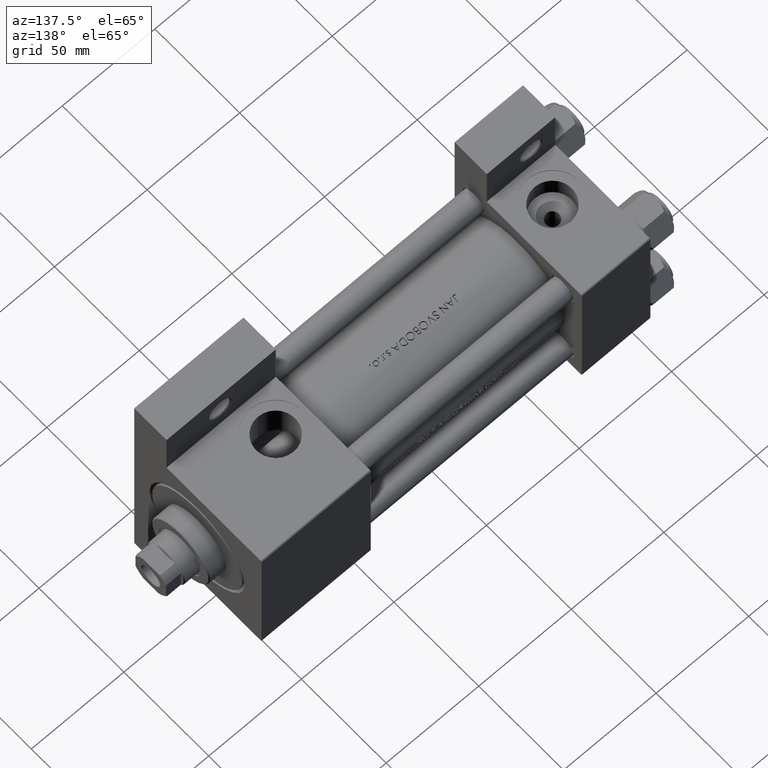
[diagram: clean part render]
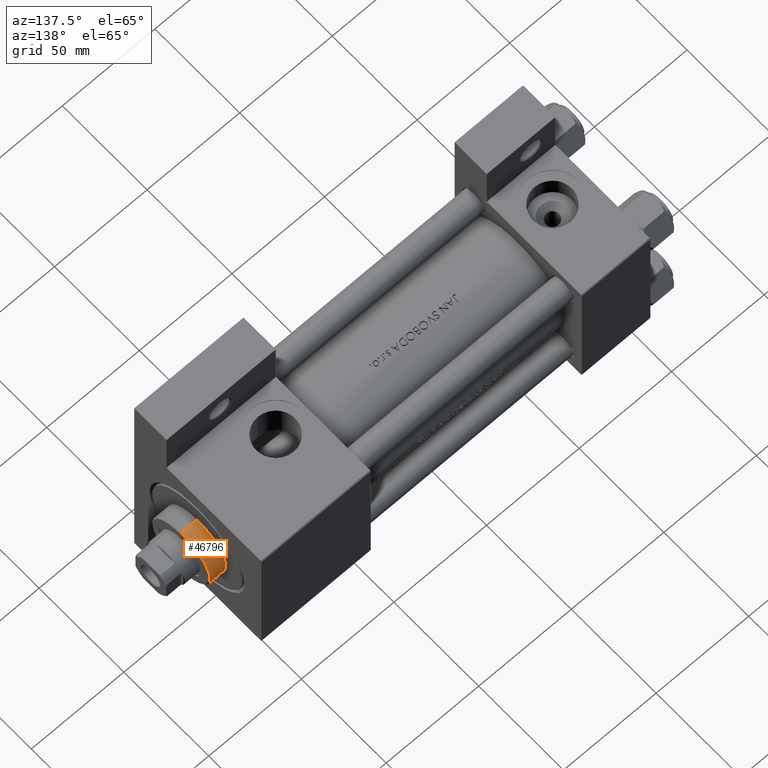
[diagram: same view with one face highlighted and labeled with its STEP entity id]
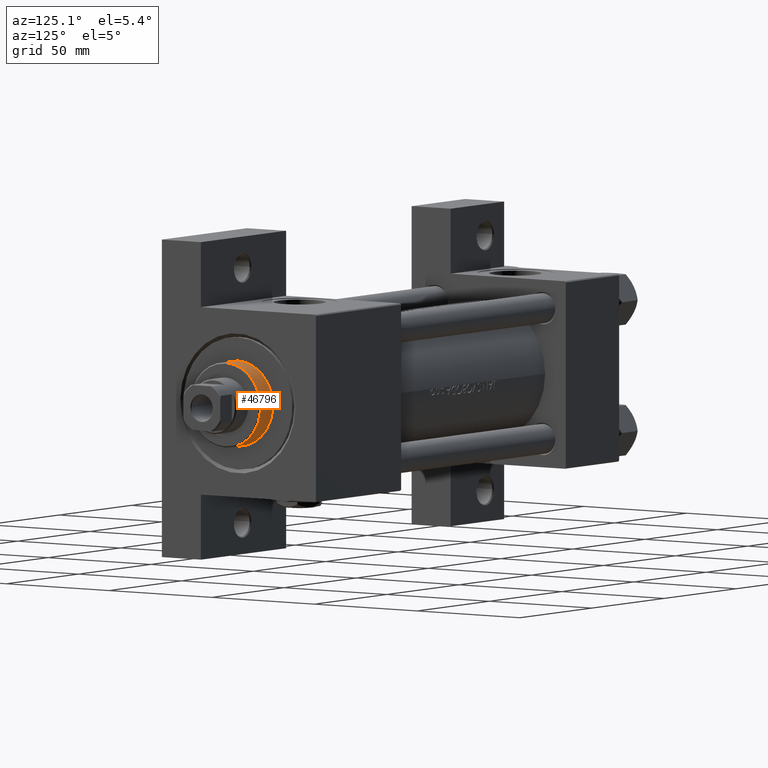
[diagram: same view with one face highlighted and labeled with its STEP entity id]
A machine part, auxiliary view. The second image highlights one B-rep face of the part: STEP entity #46796.
A second angle (auxiliary view) of the same face is appended — the face is thin or edge-on in the first view.
In plain terms, the highlighted cylindrical surface (partial cylindrical patch) has radius 17 mm, axis along (-1, -0, 0).
Its self-contained STEP definition (entity closure, byte-faithful):
#1832 = VECTOR ( 'NONE', #11435, 1000.000000000000000 ) ;
#2556 = EDGE_CURVE ( 'NONE', #9509, #3498, #3382, .T. ) ;
#2716 = VERTEX_POINT ( 'NONE', #48411 ) ;
#3031 = EDGE_CURVE ( 'NONE', #9509, #2716, #23856, .T. ) ;
#3382 = LINE ( 'NONE', #34036, #41293 ) ;
#3498 = VERTEX_POINT ( 'NONE', #13886 ) ;
#5473 = DIRECTION ( 'NONE',  ( 1.000000000000000000, 0.000000000000000000, 0.000000000000000000 ) ) ;
#5800 = DIRECTION ( 'NONE',  ( 1.000000000000000000, 0.000000000000000000, 0.000000000000000000 ) ) ;
#7187 = CARTESIAN_POINT ( 'NONE',  ( 0.000000000000000000, 0.000000000000000000, 37.19999999999999574 ) ) ;
#7935 = DIRECTION ( 'NONE',  ( -0.000000000000000000, -0.000000000000000000, -1.000000000000000000 ) ) ;
#9509 = VERTEX_POINT ( 'NONE', #23738 ) ;
#9911 = VERTEX_POINT ( 'NONE', #45830 ) ;
#10605 = ORIENTED_EDGE ( 'NONE', *, *, #3031, .T. ) ;
#10683 = DIRECTION ( 'NONE',  ( 0.000000000000000000, 0.000000000000000000, -1.000000000000000000 ) ) ;
#11435 = DIRECTION ( 'NONE',  ( -0.000000000000000000, -0.000000000000000000, -1.000000000000000000 ) ) ;
#11921 = CYLINDRICAL_SURFACE ( 'NONE', #34626, 17.00000000000000000 ) ;
#13886 = CARTESIAN_POINT ( 'NONE',  ( -17.00000000000000000, 0.000000000000000000, 28.69999999999999929 ) ) ;
#15717 = AXIS2_PLACEMENT_3D ( 'NONE', #20681, #43840, #5473 ) ;
#18167 = ORIENTED_EDGE ( 'NONE', *, *, #19319, .T. ) ;
#19319 = EDGE_CURVE ( 'NONE', #9911, #3498, #37199, .T. ) ;
#20160 = FACE_OUTER_BOUND ( 'NONE', #49194, .T. ) ;
#20681 = CARTESIAN_POINT ( 'NONE',  ( 0.000000000000000000, 0.000000000000000000, 28.69999999999999929 ) ) ;
#22672 = CARTESIAN_POINT ( 'NONE',  ( 17.00000000000000000, 2.081899558550500280E-15, 37.69999999999999574 ) ) ;
#22918 = LINE ( 'NONE', #22672, #1832 ) ;
#23738 = CARTESIAN_POINT ( 'NONE',  ( -17.00000000000000000, 0.000000000000000000, 37.19999999999999574 ) ) ;
#23856 = CIRCLE ( 'NONE', #42940, 17.00000000000000000 ) ;
#26647 = CARTESIAN_POINT ( 'NONE',  ( 0.000000000000000000, 0.000000000000000000, 37.69999999999999574 ) ) ;
#34036 = CARTESIAN_POINT ( 'NONE',  ( -17.00000000000000000, 0.000000000000000000, 37.69999999999999574 ) ) ;
#34626 = AXIS2_PLACEMENT_3D ( 'NONE', #26647, #7935, #41828 ) ;
#37199 = CIRCLE ( 'NONE', #15717, 17.00000000000000000 ) ;
#41293 = VECTOR ( 'NONE', #42240, 1000.000000000000000 ) ;
#41600 = EDGE_CURVE ( 'NONE', #2716, #9911, #22918, .T. ) ;
#41828 = DIRECTION ( 'NONE',  ( -1.000000000000000000, 0.000000000000000000, 0.000000000000000000 ) ) ;
#42240 = DIRECTION ( 'NONE',  ( -0.000000000000000000, -0.000000000000000000, -1.000000000000000000 ) ) ;
#42940 = AXIS2_PLACEMENT_3D ( 'NONE', #7187, #10683, #5800 ) ;
#43524 = ORIENTED_EDGE ( 'NONE', *, *, #2556, .F. ) ;
#43840 = DIRECTION ( 'NONE',  ( 0.000000000000000000, 0.000000000000000000, 1.000000000000000000 ) ) ;
#45830 = CARTESIAN_POINT ( 'NONE',  ( 17.00000000000000000, 2.081899558550500280E-15, 28.69999999999999929 ) ) ;
#46652 = ORIENTED_EDGE ( 'NONE', *, *, #41600, .T. ) ;
#46796 = ADVANCED_FACE ( 'NONE', ( #20160 ), #11921, .T. ) ;
#48411 = CARTESIAN_POINT ( 'NONE',  ( 17.00000000000000000, 2.081899558550500280E-15, 37.19999999999999574 ) ) ;
#49194 = EDGE_LOOP ( 'NONE', ( #10605, #46652, #18167, #43524 ) ) ;